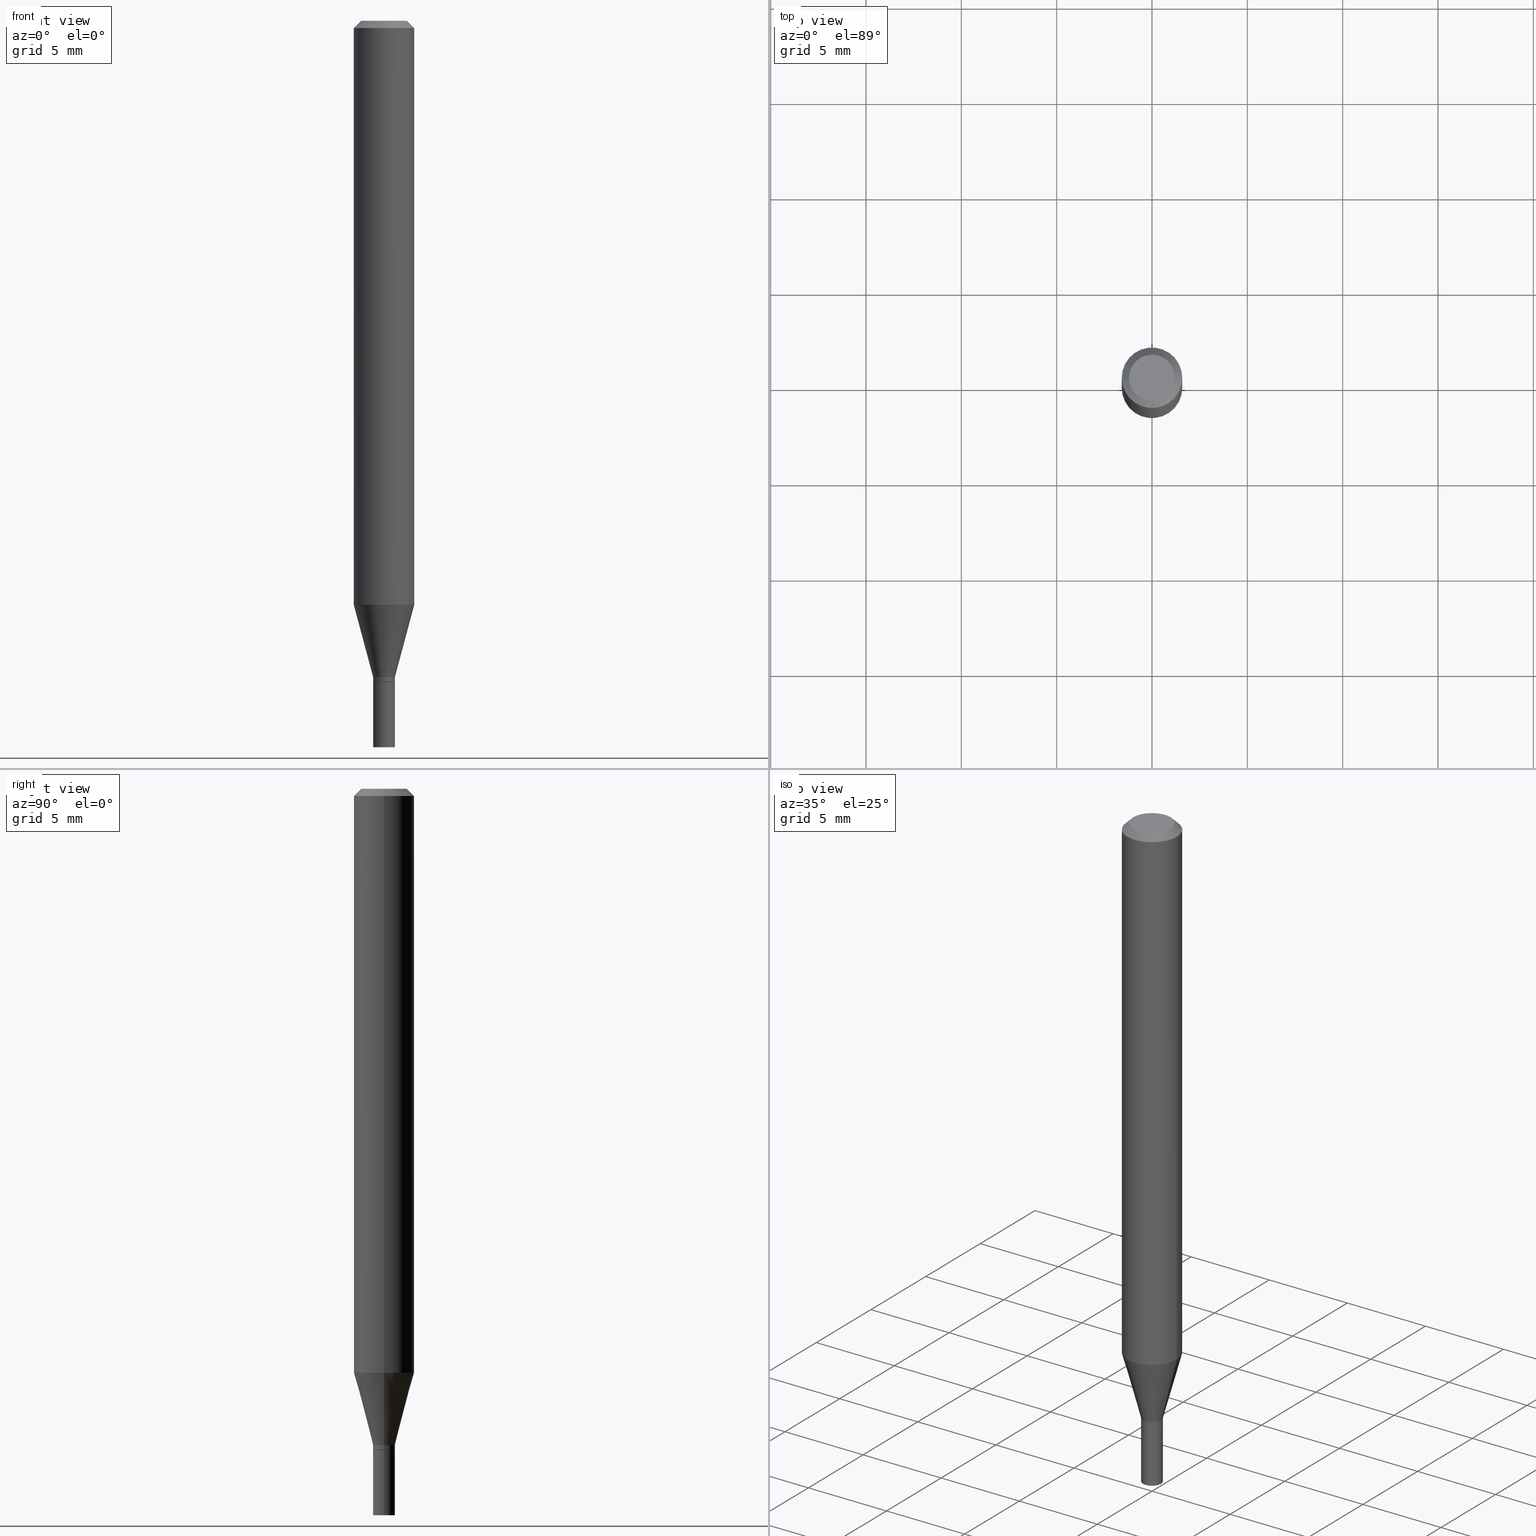
[diagram: canonical four-view strip — front | top / right | iso, engineering-drawing reading convention]
A machine part, canonical four-view strip (front | top / right | iso — engineering-drawing reading convention). The complete STEP part file that produces these views, byte-faithful:
ISO-10303-21;
HEADER;
FILE_DESCRIPTION (( 'STEP AP203' ),
    '1' );
FILE_NAME ('00483.STEP',
    '2024-03-19T21:20:29',
    ( '' ),
    ( '' ),
    'SwSTEP 2.0',
    'SolidWorks 2023',
    '' );
FILE_SCHEMA (( 'CONFIG_CONTROL_DESIGN' ));
ENDSEC;

DATA;
#1 = ORIENTED_EDGE ( 'NONE', *, *, #43, .T. ) ;
#2 = LINE ( 'NONE', #140, #127 ) ;
#3 = AXIS2_PLACEMENT_3D ( 'NONE', #68, #273, #282 ) ;
#4 = VECTOR ( 'NONE', #171, 39.37007874015748143 ) ;
#5 = DIRECTION ( 'NONE',  ( 1.000000000000000000, -6.982962677686269077E-15, 0.000000000000000000 ) ) ;
#6 = DIRECTION ( 'NONE',  ( -2.445468806185136597E-29, 3.491481338843145583E-15, 1.000000000000000000 ) ) ;
#7 = APPROVAL_STATUS ( 'not_yet_approved' ) ;
#8 = CARTESIAN_POINT ( 'NONE',  ( 3.338064920442711836E-29, -4.765872027520893280E-15, -1.364999999999999991 ) ) ;
#9 = APPROVAL ( #20, 'UNSPECIFIED' ) ;
#10 = DIRECTION ( 'NONE',  ( 1.000000000000000000, -6.982962677686267499E-15, 4.852736867747366768E-29 ) ) ;
#11 = ORIENTED_EDGE ( 'NONE', *, *, #128, .T. ) ;
#12 = PERSON_AND_ORGANIZATION ( #106, #370 ) ;
#13 = VERTEX_POINT ( 'NONE', #313 ) ;
#14 = DIRECTION ( 'NONE',  ( 0.7071067811865656694, -2.468850131082446387E-15, 0.7071067811865294761 ) ) ;
#15 = ADVANCED_FACE ( 'NONE', ( #456 ), #418, .T. ) ;
#16 = DIRECTION ( 'NONE',  ( 1.000000000000000000, -6.982962677686267499E-15, 4.852736867747366768E-29 ) ) ;
#17 = EDGE_LOOP ( 'NONE', ( #194, #21 ) ) ;
#18 = CONICAL_SURFACE ( 'NONE', #256, 0.02199999999999999872, 0.7853981633974739252 ) ;
#19 = CIRCLE ( 'NONE', #132, 0.06250000000000000000 ) ;
#20 = APPROVAL_STATUS ( 'not_yet_approved' ) ;
#21 = ORIENTED_EDGE ( 'NONE', *, *, #202, .F. ) ;
#22 = DIRECTION ( 'NONE',  ( 1.000000000000000000, -6.982962677686265922E-15, 4.876176775795935793E-29 ) ) ;
#23 = APPLICATION_PROTOCOL_DEFINITION ( 'international standard', 'config_control_design', 1994, #311 ) ;
#24 = EDGE_CURVE ( 'NONE', #101, #58, #335, .T. ) ;
#25 = APPROVAL ( #38, 'UNSPECIFIED' ) ;
#26 = CARTESIAN_POINT ( 'NONE',  ( -0.02249999999999999917, 1.598721155460225359E-16, -1.106760395307353780E-30 ) ) ;
#27 = LINE ( 'NONE', #26, #188 ) ;
#28 = AXIS2_PLACEMENT_3D ( 'NONE', #117, #298, #155 ) ;
#29 = FACE_OUTER_BOUND ( 'NONE', #17, .T. ) ;
#30 = SECURITY_CLASSIFICATION ( '', '', #455 ) ;
#31 = EDGE_CURVE ( 'NONE', #187, #58, #27, .T. ) ;
#32 = DIRECTION ( 'NONE',  ( -2.445468806185136597E-29, 3.491481338843145583E-15, 1.000000000000000000 ) ) ;
#33 = PERSON_AND_ORGANIZATION_ROLE ( 'design_supplier' ) ;
#34 = DIRECTION ( 'NONE',  ( 1.000000000000000000, -6.982962677686266711E-15, 0.000000000000000000 ) ) ;
#35 = CARTESIAN_POINT ( 'NONE',  ( 3.668203209277705088E-31, -5.237222008264718399E-17, -0.01499999999999999944 ) ) ;
#36 = VECTOR ( 'NONE', #366, 39.37007874015748143 ) ;
#37 = DIRECTION ( 'NONE',  ( 1.000000000000000000, -6.982962677686266711E-15, 0.000000000000000000 ) ) ;
#38 = APPROVAL_STATUS ( 'not_yet_approved' ) ;
#39 = PLANE ( 'NONE',  #382 ) ;
#40 = DIRECTION ( 'NONE',  ( -1.000000000000000000, 6.982962677686265922E-15, -4.876176775795935793E-29 ) ) ;
#41 = CIRCLE ( 'NONE', #57, 0.06250000000000000000 ) ;
#42 = CIRCLE ( 'NONE', #67, 0.02249999999999999917 ) ;
#43 = EDGE_CURVE ( 'NONE', #193, #271, #360, .T. ) ;
#44 = CARTESIAN_POINT ( 'NONE',  ( -5.723698685194923234E-45, 8.171924785126947293E-31, 2.340532281875119882E-16 ) ) ;
#45 = DIMENSIONAL_EXPONENTS ( 1.000000000000000000, 0.000000000000000000, 0.000000000000000000, 0.000000000000000000, 0.000000000000000000, 0.000000000000000000, 0.000000000000000000 ) ;
#46 = DIRECTION ( 'NONE',  ( 1.000000000000000000, -6.982962677686249356E-15, 0.000000000000000000 ) ) ;
#47 = PERSON_AND_ORGANIZATION ( #106, #370 ) ;
#48 = FACE_OUTER_BOUND ( 'NONE', #223, .T. ) ;
#49 = EDGE_CURVE ( 'NONE', #62, #54, #41, .T. ) ;
#50 = AXIS2_PLACEMENT_3D ( 'NONE', #44, #111, #10 ) ;
#51 = AXIS2_PLACEMENT_3D ( 'NONE', #178, #358, #464 ) ;
#52 = EDGE_LOOP ( 'NONE', ( #425, #447, #154, #122 ) ) ;
#53 = CARTESIAN_POINT ( 'NONE',  ( 3.338064920442711836E-29, -4.765872027520893280E-15, -1.364999999999999991 ) ) ;
#54 = VERTEX_POINT ( 'NONE', #363 ) ;
#55 = DIRECTION ( 'NONE',  ( -2.445468806185136597E-29, 3.491481338843145583E-15, 1.000000000000000000 ) ) ;
#56 = ORIENTED_EDGE ( 'NONE', *, *, #458, .F. ) ;
#57 = AXIS2_PLACEMENT_3D ( 'NONE', #371, #403, #431 ) ;
#58 = VERTEX_POINT ( 'NONE', #263 ) ;
#59 = CIRCLE ( 'NONE', #390, 0.06250000000000000000 ) ;
#60 = PRODUCT_DEFINITION_SHAPE ( 'NONE', 'NONE',  #168 ) ;
#61 = ADVANCED_FACE ( 'NONE', ( #331 ), #290, .T. ) ;
#62 = VERTEX_POINT ( 'NONE', #394 ) ;
#63 = LINE ( 'NONE', #457, #280 ) ;
#64 = COORDINATED_UNIVERSAL_TIME_OFFSET ( 5, 0, .BEHIND. ) ;
#65 = DIRECTION ( 'NONE',  ( -2.445468806185136597E-29, 3.491481338843145583E-15, 1.000000000000000000 ) ) ;
#66 = CIRCLE ( 'NONE', #28, 0.02249999999999992284 ) ;
#67 = AXIS2_PLACEMENT_3D ( 'NONE', #429, #359, #136 ) ;
#68 = CARTESIAN_POINT ( 'NONE',  ( 0.000000000000000000, 0.000000000000000000, 0.000000000000000000 ) ) ;
#69 = APPROVAL_DATE_TIME ( #281, #25 ) ;
#70 = DIRECTION ( 'NONE',  ( 1.000000000000000000, -6.982962677686265922E-15, 4.876176775795935793E-29 ) ) ;
#71 = CYLINDRICAL_SURFACE ( 'NONE', #437, 0.02249999999999999917 ) ;
#72 = APPROVAL_ROLE ( '' ) ;
#73 = EDGE_CURVE ( 'NONE', #193, #13, #85, .T. ) ;
#74 = ORIENTED_EDGE ( 'NONE', *, *, #49, .T. ) ;
#75 = CARTESIAN_POINT ( 'NONE',  ( 3.338064920442711836E-29, -4.765872027520893280E-15, -1.364999999999999991 ) ) ;
#76 = DIRECTION ( 'NONE',  ( -2.438088387897960049E-29, 3.491481338843145188E-15, 1.000000000000000000 ) ) ;
#77 = ADVANCED_FACE ( 'NONE', ( #152 ), #339, .T. ) ;
#78 = CARTESIAN_POINT ( 'NONE',  ( 0.02249999999999991937, -4.888073874380403263E-15, -1.355000000000000204 ) ) ;
#79 = AXIS2_PLACEMENT_3D ( 'NONE', #408, #294, #373 ) ;
#80 = AXIS2_PLACEMENT_3D ( 'NONE', #283, #138, #40 ) ;
#81 = CARTESIAN_POINT ( 'NONE',  ( 0.02249999999999999917, -4.922988687768834913E-15, -1.364999999999999991 ) ) ;
#82 = LINE ( 'NONE', #181, #36 ) ;
#83 = CARTESIAN_POINT ( 'NONE',  ( 3.313610232380860851E-29, -4.730957214132463209E-15, -1.355000000000000204 ) ) ;
#84 =( NAMED_UNIT ( * ) PLANE_ANGLE_UNIT ( ) SI_UNIT ( $, .RADIAN. ) );
#85 = LINE ( 'NONE', #333, #305 ) ;
#86 = ORIENTED_EDGE ( 'NONE', *, *, #105, .F. ) ;
#87 = ORIENTED_EDGE ( 'NONE', *, *, #409, .F. ) ;
#88 = MANIFOLD_SOLID_BREP ( 'Body-Move/Copy2[1]', #405 ) ;
#89 = CARTESIAN_POINT ( 'NONE',  ( 0.000000000000000000, 0.000000000000000000, 0.000000000000000000 ) ) ;
#90 = EDGE_LOOP ( 'NONE', ( #74, #343, #234, #126 ) ) ;
#91 = CC_DESIGN_APPROVAL ( #25, ( #30 ) ) ;
#92 = ORIENTED_EDGE ( 'NONE', *, *, #31, .F. ) ;
#93 = CARTESIAN_POINT ( 'NONE',  ( 0.000000000000000000, 0.000000000000000000, 0.000000000000000000 ) ) ;
#94 = DIRECTION ( 'NONE',  ( 1.000000000000000000, 0.000000000000000000, 0.000000000000000000 ) ) ;
#95 = ORIENTED_EDGE ( 'NONE', *, *, #134, .F. ) ;
#96 = CC_DESIGN_SECURITY_CLASSIFICATION ( #30, ( #376 ) ) ;
#97 = DATE_TIME_ROLE ( 'creation_date' ) ;
#98 = CARTESIAN_POINT ( 'NONE',  ( 3.338064920442711836E-29, -4.765872027520893280E-15, -1.364999999999999991 ) ) ;
#99 = EDGE_CURVE ( 'NONE', #225, #375, #246, .T. ) ;
#100 = DATE_AND_TIME ( #170, #287 ) ;
#101 = VERTEX_POINT ( 'NONE', #81 ) ;
#102 = AXIS2_PLACEMENT_3D ( 'NONE', #53, #252, #268 ) ;
#103 = FACE_OUTER_BOUND ( 'NONE', #52, .T. ) ;
#104 = CALENDAR_DATE ( 2024, 19, 3 ) ;
#105 = EDGE_CURVE ( 'NONE', #375, #225, #266, .T. ) ;
#106 = PERSON ( 'UNSPECIFIED', 'UNSPECIFIED', 'UNSPECIFIED', ('UNSPECIFIED'), ('UNSPECIFIED'), ('UNSPECIFIED') ) ;
#107 = ADVANCED_FACE ( 'NONE', ( #222 ), #119, .T. ) ;
#108 = DATE_AND_TIME ( #172, #427 ) ;
#109 = PLANE ( 'NONE',  #80 ) ;
#110 = VECTOR ( 'NONE', #299, 39.37007874015747433 ) ;
#111 = DIRECTION ( 'NONE',  ( -2.445468806185136597E-29, 3.491481338843145583E-15, 1.000000000000000000 ) ) ;
#112 = LOCAL_TIME ( 17, 20, 29.00000000000000000, #124 ) ;
#113 = CARTESIAN_POINT ( 'NONE',  ( 3.338064920442711836E-29, -4.765872027520893280E-15, -1.364999999999999991 ) ) ;
#114 = DATE_AND_TIME ( #149, #218 ) ;
#115 = DIRECTION ( 'NONE',  ( 1.000000000000000000, -6.982962677686249356E-15, 0.000000000000000000 ) ) ;
#116 = CC_DESIGN_DATE_AND_TIME_ASSIGNMENT ( #312, #97, ( #168 ) ) ;
#117 = CARTESIAN_POINT ( 'NONE',  ( 3.336842186039619034E-29, -4.764126286851473355E-15, -1.364500000000000046 ) ) ;
#118 = VERTEX_POINT ( 'NONE', #148 ) ;
#119 = CONICAL_SURFACE ( 'NONE', #217, 0.06250000000000000000, 0.7853981633974405074 ) ;
#120 = FACE_OUTER_BOUND ( 'NONE', #238, .T. ) ;
#121 = CIRCLE ( 'NONE', #206, 0.02249999999999999917 ) ;
#122 = ORIENTED_EDGE ( 'NONE', *, *, #254, .F. ) ;
#123 = ORIENTED_EDGE ( 'NONE', *, *, #24, .T. ) ;
#124 = COORDINATED_UNIVERSAL_TIME_OFFSET ( 5, 0, .BEHIND. ) ;
#125 = VERTEX_POINT ( 'NONE', #219 ) ;
#126 = ORIENTED_EDGE ( 'NONE', *, *, #328, .F. ) ;
#127 = VECTOR ( 'NONE', #353, 39.37007874015748143 ) ;
#128 = EDGE_CURVE ( 'NONE', #13, #118, #66, .T. ) ;
#129 = PLANE ( 'NONE',  #247 ) ;
#130 = PERSON_AND_ORGANIZATION ( #106, #370 ) ;
#131 = DIRECTION ( 'NONE',  ( -2.445468806185136877E-29, 3.491481338843145188E-15, 1.000000000000000000 ) ) ;
#132 = AXIS2_PLACEMENT_3D ( 'NONE', #235, #32, #34 ) ;
#133 = DIRECTION ( 'NONE',  ( -2.438088387897960049E-29, 3.491481338843145188E-15, 1.000000000000000000 ) ) ;
#134 = EDGE_CURVE ( 'NONE', #225, #406, #300, .T. ) ;
#135 = PRODUCT_RELATED_PRODUCT_CATEGORY ( 'detail', '', ( #341 ) ) ;
#136 = DIRECTION ( 'NONE',  ( 1.000000000000000000, -6.982962677686269077E-15, 0.000000000000000000 ) ) ;
#137 = EDGE_LOOP ( 'NONE', ( #340, #156, #372, #56 ) ) ;
#138 = DIRECTION ( 'NONE',  ( 2.438088387897960049E-29, -3.491481338843145188E-15, -1.000000000000000000 ) ) ;
#139 = ORIENTED_EDGE ( 'NONE', *, *, #338, .T. ) ;
#140 = CARTESIAN_POINT ( 'NONE',  ( 0.06250000000000000000, -4.364351673553916694E-16, 3.047610484872459871E-30 ) ) ;
#141 = AXIS2_PLACEMENT_3D ( 'NONE', #75, #289, #5 ) ;
#142 = CARTESIAN_POINT ( 'NONE',  ( 0.000000000000000000, 0.000000000000000000, 0.000000000000000000 ) ) ;
#143 = CARTESIAN_POINT ( 'NONE',  ( -0.02249999999999999917, -4.841674902346784228E-15, -1.500000000000000222 ) ) ;
#144 = DIRECTION ( 'NONE',  ( -2.445468806185136597E-29, 3.491481338843145583E-15, 1.000000000000000000 ) ) ;
#145 = DIRECTION ( 'NONE',  ( -1.000000000000000000, 6.982962677686266711E-15, 0.000000000000000000 ) ) ;
#146 = CARTESIAN_POINT ( 'NONE',  ( 0.000000000000000000, 0.000000000000000000, 0.000000000000000000 ) ) ;
#147 = ORIENTED_EDGE ( 'NONE', *, *, #327, .F. ) ;
#148 = CARTESIAN_POINT ( 'NONE',  ( -0.02249999999999992284, -4.604254171305449488E-15, -1.364500000000000046 ) ) ;
#149 = CALENDAR_DATE ( 2024, 19, 3 ) ;
#150 = ORIENTED_EDGE ( 'NONE', *, *, #243, .F. ) ;
#151 = CC_DESIGN_DATE_AND_TIME_ASSIGNMENT ( #100, #240, ( #30 ) ) ;
#152 = FACE_OUTER_BOUND ( 'NONE', #90, .T. ) ;
#153 = ORIENTED_EDGE ( 'NONE', *, *, #459, .F. ) ;
#154 = ORIENTED_EDGE ( 'NONE', *, *, #24, .F. ) ;
#155 = DIRECTION ( 'NONE',  ( 1.000000000000000000, -6.982962677686248567E-15, 0.000000000000000000 ) ) ;
#156 = ORIENTED_EDGE ( 'NONE', *, *, #202, .T. ) ;
#157 = ADVANCED_FACE ( 'NONE', ( #120 ), #18, .T. ) ;
#158 = AXIS2_PLACEMENT_3D ( 'NONE', #93, #400, #192 ) ;
#159 = AXIS2_PLACEMENT_3D ( 'NONE', #142, #213, #70 ) ;
#160 = ORIENTED_EDGE ( 'NONE', *, *, #436, .T. ) ;
#161 = DIRECTION ( 'NONE',  ( 1.000000000000000000, -6.982962677686269077E-15, 0.000000000000000000 ) ) ;
#162 = CYLINDRICAL_SURFACE ( 'NONE', #3, 0.02249999999999992284 ) ;
#163 = CALENDAR_DATE ( 2024, 19, 3 ) ;
#164 = ORIENTED_EDGE ( 'NONE', *, *, #49, .F. ) ;
#165 = LINE ( 'NONE', #314, #267 ) ;
#166 = VERTEX_POINT ( 'NONE', #227 ) ;
#167 = APPROVAL_PERSON_ORGANIZATION ( #402, #386, #463 ) ;
#168 = PRODUCT_DEFINITION ( 'UNKNOWN', '', #376, #374 ) ;
#169 = CARTESIAN_POINT ( 'NONE',  ( 3.338064920442711836E-29, -4.765872027520893280E-15, -1.364999999999999991 ) ) ;
#170 = CALENDAR_DATE ( 2024, 19, 3 ) ;
#171 = DIRECTION ( 'NONE',  ( -2.445468806185136877E-29, 3.491481338843145188E-15, 1.000000000000000000 ) ) ;
#172 = CALENDAR_DATE ( 2024, 19, 3 ) ;
#173 = ADVANCED_FACE ( 'NONE', ( #48 ), #279, .T. ) ;
#174 = CIRCLE ( 'NONE', #326, 0.02249999999999991937 ) ;
#175 = FACE_OUTER_BOUND ( 'NONE', #412, .T. ) ;
#176 = CARTESIAN_POINT ( 'NONE',  ( 3.576687321579069994E-29, -5.368277968210015545E-15, -1.500000000000000222 ) ) ;
#177 = EDGE_LOOP ( 'NONE', ( #397, #230, #164, #153 ) ) ;
#178 = CARTESIAN_POINT ( 'NONE',  ( 3.668203209277705088E-31, -5.237222008264718399E-17, -0.01499999999999999944 ) ) ;
#179 = ORIENTED_EDGE ( 'NONE', *, *, #327, .T. ) ;
#180 = CIRCLE ( 'NONE', #198, 0.02249999999999992284 ) ;
#181 = CARTESIAN_POINT ( 'NONE',  ( 0.02249999999999992284, -1.571166602479404488E-16, 1.097139774554081805E-30 ) ) ;
#182 = CARTESIAN_POINT ( 'NONE',  ( 3.668203209277704895E-29, -5.237222008264718177E-15, -1.500000000000000222 ) ) ;
#183 = DIRECTION ( 'NONE',  ( 1.000000000000000000, -6.982962677686266711E-15, 4.876176775795935793E-29 ) ) ;
#184 = COORDINATED_UNIVERSAL_TIME_OFFSET ( 5, 0, .BEHIND. ) ;
#185 = CARTESIAN_POINT ( 'NONE',  ( 3.313610232380860851E-29, -4.730957214132463209E-15, -1.355000000000000204 ) ) ;
#186 = CC_DESIGN_PERSON_AND_ORGANIZATION_ASSIGNMENT ( #398, #441, ( #168 ) ) ;
#187 = VERTEX_POINT ( 'NONE', #143 ) ;
#188 = VECTOR ( 'NONE', #131, 39.37007874015748143 ) ;
#189 = CONICAL_SURFACE ( 'NONE', #51, 0.06250000000000000000, 0.7853981633974405074 ) ;
#190 = FACE_OUTER_BOUND ( 'NONE', #177, .T. ) ;
#191 = CARTESIAN_POINT ( 'NONE',  ( 0.06250000000000000000, -4.811533449433679005E-16, -0.01499999999999999944 ) ) ;
#192 = DIRECTION ( 'NONE',  ( 1.000000000000000000, -6.982962677686266711E-15, 4.876176775795935793E-29 ) ) ;
#193 = VERTEX_POINT ( 'NONE', #434 ) ;
#194 = ORIENTED_EDGE ( 'NONE', *, *, #43, .F. ) ;
#195 = DIRECTION ( 'NONE',  ( 2.445468806185136597E-29, -3.491481338843145583E-15, -1.000000000000000000 ) ) ;
#196 = LINE ( 'NONE', #191, #322 ) ;
#197 = DIRECTION ( 'NONE',  ( 1.000000000000000000, -6.982962677686248567E-15, 0.000000000000000000 ) ) ;
#198 = AXIS2_PLACEMENT_3D ( 'NONE', #307, #411, #197 ) ;
#199 = ORIENTED_EDGE ( 'NONE', *, *, #262, .F. ) ;
#200 = DIRECTION ( 'NONE',  ( -0.2588190451025213501, 5.211531920934551042E-15, 0.9659258262890682012 ) ) ;
#201 = PERSON_AND_ORGANIZATION ( #106, #370 ) ;
#202 = EDGE_CURVE ( 'NONE', #271, #193, #321, .T. ) ;
#203 = EDGE_LOOP ( 'NONE', ( #444, #87 ) ) ;
#204 = CARTESIAN_POINT ( 'NONE',  ( -0.04749999999999999362, 3.578768372314215436E-16, 2.340532281875096216E-16 ) ) ;
#205 = AXIS2_PLACEMENT_3D ( 'NONE', #98, #65, #161 ) ;
#206 = AXIS2_PLACEMENT_3D ( 'NONE', #182, #251, #211 ) ;
#207 =( GEOMETRIC_REPRESENTATION_CONTEXT ( 3 ) GLOBAL_UNCERTAINTY_ASSIGNED_CONTEXT ( ( #419 ) ) GLOBAL_UNIT_ASSIGNED_CONTEXT ( ( #334, #84, #332 ) ) REPRESENTATION_CONTEXT ( 'NONE', 'WORKASPACE' ) );
#208 = DIRECTION ( 'NONE',  ( -2.445468806185136877E-29, 3.491481338843145188E-15, 1.000000000000000000 ) ) ;
#209 = ADVANCED_FACE ( 'NONE', ( #190 ), #435, .T. ) ;
#210 = EDGE_CURVE ( 'NONE', #369, #296, #174, .T. ) ;
#211 = DIRECTION ( 'NONE',  ( 1.000000000000000000, -6.982962677686269077E-15, 0.000000000000000000 ) ) ;
#212 = CIRCLE ( 'NONE', #356, 0.02249999999999991937 ) ;
#213 = DIRECTION ( 'NONE',  ( -2.445468806185136597E-29, 3.491481338843145583E-15, 1.000000000000000000 ) ) ;
#214 = APPLICATION_CONTEXT ( 'configuration controlled 3d designs of mechanical parts and assemblies' ) ;
#215 = ADVANCED_FACE ( 'NONE', ( #260 ), #224, .F. ) ;
#216 = LINE ( 'NONE', #245, #414 ) ;
#217 = AXIS2_PLACEMENT_3D ( 'NONE', #303, #195, #145 ) ;
#218 = LOCAL_TIME ( 17, 20, 29.00000000000000000, #184 ) ;
#219 = CARTESIAN_POINT ( 'NONE',  ( 0.06250000000000000000, -4.888073874380388472E-16, -0.01499999999999999944 ) ) ;
#220 = ADVANCED_FACE ( 'NONE', ( #29 ), #129, .F. ) ;
#221 = ADVANCED_FACE ( 'NONE', ( #380 ), #162, .T. ) ;
#222 = FACE_OUTER_BOUND ( 'NONE', #269, .T. ) ;
#223 = EDGE_LOOP ( 'NONE', ( #199, #336, #264, #465 ) ) ;
#224 = PLANE ( 'NONE',  #361 ) ;
#225 = VERTEX_POINT ( 'NONE', #204 ) ;
#226 = CC_DESIGN_APPROVAL ( #386, ( #376 ) ) ;
#227 = CARTESIAN_POINT ( 'NONE',  ( 0.02249999999999999917, -5.394338668512659809E-15, -1.500000000000000222 ) ) ;
#228 = ORIENTED_EDGE ( 'NONE', *, *, #453, .T. ) ;
#229 = CARTESIAN_POINT ( 'NONE',  ( -0.06250000000000000000, 3.840629472727444916E-16, -0.01499999999999999944 ) ) ;
#230 = ORIENTED_EDGE ( 'NONE', *, *, #262, .T. ) ;
#231 = AXIS2_PLACEMENT_3D ( 'NONE', #83, #365, #46 ) ;
#232 = LENGTH_MEASURE_WITH_UNIT ( LENGTH_MEASURE( 0.02539999999999999897 ), #364 );
#233 = APPROVAL_PERSON_ORGANIZATION ( #388, #25, #72 ) ;
#234 = ORIENTED_EDGE ( 'NONE', *, *, #244, .F. ) ;
#235 = CARTESIAN_POINT ( 'NONE',  ( 3.668203209277705088E-31, -5.237222008264718399E-17, -0.01499999999999999944 ) ) ;
#236 = DIRECTION ( 'NONE',  ( 1.000000000000000000, -6.982962677686265922E-15, 4.876176775795935793E-29 ) ) ;
#237 = ORIENTED_EDGE ( 'NONE', *, *, #436, .F. ) ;
#238 = EDGE_LOOP ( 'NONE', ( #1, #139, #416, #379 ) ) ;
#239 = CARTESIAN_POINT ( 'NONE',  ( -0.06250000000000000000, 4.440892098500626162E-16, -3.074334431409316114E-30 ) ) ;
#240 = DATE_TIME_ROLE ( 'classification_date' ) ;
#241 = SHAPE_DEFINITION_REPRESENTATION ( #60, #253 ) ;
#242 = PERSON_AND_ORGANIZATION_ROLE ( 'creator' ) ;
#243 = EDGE_CURVE ( 'NONE', #54, #406, #420, .T. ) ;
#244 = EDGE_CURVE ( 'NONE', #125, #406, #19, .T. ) ;
#245 = CARTESIAN_POINT ( 'NONE',  ( -0.02199999999999999872, -4.609552625653671101E-15, -1.364999999999999991 ) ) ;
#246 = CIRCLE ( 'NONE', #50, 0.04749999999999999362 ) ;
#247 = AXIS2_PLACEMENT_3D ( 'NONE', #351, #133, #22 ) ;
#248 = DIRECTION ( 'NONE',  ( -2.445468806185136597E-29, 3.491481338843145583E-15, 1.000000000000000000 ) ) ;
#249 = CC_DESIGN_PERSON_AND_ORGANIZATION_ASSIGNMENT ( #47, #450, ( #341 ) ) ;
#250 = FACE_OUTER_BOUND ( 'NONE', #203, .T. ) ;
#251 = DIRECTION ( 'NONE',  ( -2.445468806185136597E-29, 3.491481338843145583E-15, 1.000000000000000000 ) ) ;
#252 = DIRECTION ( 'NONE',  ( -2.445468806185136597E-29, 3.491481338843145583E-15, 1.000000000000000000 ) ) ;
#253 = ADVANCED_BREP_SHAPE_REPRESENTATION ( '00483', ( #88, #393, #462 ), #207 ) ;
#254 = EDGE_CURVE ( 'NONE', #166, #101, #384, .T. ) ;
#255 = ADVANCED_FACE ( 'NONE', ( #350 ), #315, .T. ) ;
#256 = AXIS2_PLACEMENT_3D ( 'NONE', #8, #6, #443 ) ;
#257 = CC_DESIGN_APPROVAL ( #9, ( #168 ) ) ;
#258 = DIRECTION ( 'NONE',  ( -2.445468806185136597E-29, 3.491481338843145583E-15, 1.000000000000000000 ) ) ;
#259 = CARTESIAN_POINT ( 'NONE',  ( 0.02249999999999991937, -4.888073874380403263E-15, -1.355000000000000204 ) ) ;
#260 = FACE_OUTER_BOUND ( 'NONE', #325, .T. ) ;
#261 = EDGE_LOOP ( 'NONE', ( #123, #179 ) ) ;
#262 = EDGE_CURVE ( 'NONE', #369, #54, #63, .T. ) ;
#263 = CARTESIAN_POINT ( 'NONE',  ( -0.02249999999999999917, -4.841674902346784228E-15, -1.364999999999999991 ) ) ;
#264 = ORIENTED_EDGE ( 'NONE', *, *, #459, .T. ) ;
#265 = EDGE_LOOP ( 'NONE', ( #92, #302, #410, #147 ) ) ;
#266 = CIRCLE ( 'NONE', #461, 0.04749999999999999362 ) ;
#267 = VECTOR ( 'NONE', #460, 39.37007874015748143 ) ;
#268 = DIRECTION ( 'NONE',  ( 1.000000000000000000, -6.982962677686245411E-15, 0.000000000000000000 ) ) ;
#269 = EDGE_LOOP ( 'NONE', ( #86, #160, #277, #95 ) ) ;
#270 = APPROVAL_DATE_TIME ( #114, #9 ) ;
#271 = VERTEX_POINT ( 'NONE', #320 ) ;
#272 = EDGE_CURVE ( 'NONE', #118, #369, #165, .T. ) ;
#273 = DIRECTION ( 'NONE',  ( -2.445468806185136597E-29, 3.491481338843145583E-15, 1.000000000000000000 ) ) ;
#274 = CLOSED_SHELL ( 'NONE', ( #221, #157, #107, #77, #209, #173, #61, #399, #215, #220, #255, #317 ) ) ;
#275 = CIRCLE ( 'NONE', #141, 0.02249999999999999917 ) ;
#276 = ORIENTED_EDGE ( 'NONE', *, *, #453, .F. ) ;
#277 = ORIENTED_EDGE ( 'NONE', *, *, #244, .T. ) ;
#278 = CARTESIAN_POINT ( 'NONE',  ( 3.316907271900976096E-16, 0.04749999999999999362, -4.881874950129340235E-17 ) ) ;
#279 = CONICAL_SURFACE ( 'NONE', #79, 0.02249999999999991937, 0.2617993877991500740 ) ;
#280 = VECTOR ( 'NONE', #200, 39.37007874015747433 ) ;
#281 = DATE_AND_TIME ( #104, #297 ) ;
#282 = DIRECTION ( 'NONE',  ( 1.000000000000000000, -6.982962677686265922E-15, 4.876176775795935793E-29 ) ) ;
#283 = CARTESIAN_POINT ( 'NONE',  ( 1.571166602479743698E-16, 0.02249999999999523215, -1.364999999999999991 ) ) ;
#284 = ORIENTED_EDGE ( 'NONE', *, *, #458, .T. ) ;
#285 = DIRECTION ( 'NONE',  ( -2.445468806185136597E-29, 3.491481338843145583E-15, 1.000000000000000000 ) ) ;
#286 = VECTOR ( 'NONE', #445, 39.37007874015748143 ) ;
#287 = LOCAL_TIME ( 17, 20, 29.00000000000000000, #383 ) ;
#288 = CARTESIAN_POINT ( 'NONE',  ( -0.02249999999999991937, -4.168368836429595565E-15, -1.355000000000000204 ) ) ;
#289 = DIRECTION ( 'NONE',  ( -2.445468806185136597E-29, 3.491481338843145583E-15, 1.000000000000000000 ) ) ;
#290 = CYLINDRICAL_SURFACE ( 'NONE', #158, 0.06250000000000000000 ) ;
#291 = ADVANCED_FACE ( 'NONE', ( #103 ), #71, .T. ) ;
#292 = APPROVAL_ROLE ( '' ) ;
#293 = CARTESIAN_POINT ( 'NONE',  ( 0.04749999999999999362, -4.035134999187574186E-16, 2.340532281875146013E-16 ) ) ;
#294 = DIRECTION ( 'NONE',  ( -2.445468806185136597E-29, 3.491481338843145583E-15, 1.000000000000000000 ) ) ;
#295 = DIRECTION ( 'NONE',  ( 0.000000000000000000, 0.000000000000000000, 1.000000000000000000 ) ) ;
#296 = VERTEX_POINT ( 'NONE', #78 ) ;
#297 = LOCAL_TIME ( 17, 20, 29.00000000000000000, #318 ) ;
#298 = DIRECTION ( 'NONE',  ( -2.445468806185136597E-29, 3.491481338843145583E-15, 1.000000000000000000 ) ) ;
#299 = DIRECTION ( 'NONE',  ( 0.2588190451025213501, 1.565188264969621968E-15, 0.9659258262890682012 ) ) ;
#300 = LINE ( 'NONE', #229, #286 ) ;
#301 = EDGE_LOOP ( 'NONE', ( #11, #448, #449, #276 ) ) ;
#302 = ORIENTED_EDGE ( 'NONE', *, *, #409, .T. ) ;
#303 = CARTESIAN_POINT ( 'NONE',  ( 3.668203209277705088E-31, -5.237222008264718399E-17, -0.01499999999999999944 ) ) ;
#304 = ORIENTED_EDGE ( 'NONE', *, *, #328, .T. ) ;
#305 = VECTOR ( 'NONE', #14, 39.37007874015748143 ) ;
#306 = AXIS2_PLACEMENT_3D ( 'NONE', #169, #319, #378 ) ;
#307 = CARTESIAN_POINT ( 'NONE',  ( 3.336842186039619034E-29, -4.764126286851473355E-15, -1.364500000000000046 ) ) ;
#308 = EDGE_CURVE ( 'NONE', #166, #187, #121, .T. ) ;
#309 = CC_DESIGN_PERSON_AND_ORGANIZATION_ASSIGNMENT ( #130, #417, ( #30 ) ) ;
#310 = ORIENTED_EDGE ( 'NONE', *, *, #354, .T. ) ;
#311 = APPLICATION_CONTEXT ( 'configuration controlled 3d designs of mechanical parts and assemblies' ) ;
#312 = DATE_AND_TIME ( #163, #112 ) ;
#313 = CARTESIAN_POINT ( 'NONE',  ( 0.02249999999999992284, -4.921242947099412620E-15, -1.364500000000000046 ) ) ;
#314 = CARTESIAN_POINT ( 'NONE',  ( -0.02249999999999992284, 1.598721155460219936E-16, -1.106760395307350101E-30 ) ) ;
#315 = CONICAL_SURFACE ( 'NONE', #306, 0.02199999999999999872, 0.7853981633974739252 ) ;
#316 = ORIENTED_EDGE ( 'NONE', *, *, #210, .F. ) ;
#317 = ADVANCED_FACE ( 'NONE', ( #385 ), #392, .T. ) ;
#318 = COORDINATED_UNIVERSAL_TIME_OFFSET ( 5, 0, .BEHIND. ) ;
#319 = DIRECTION ( 'NONE',  ( -2.445468806185136597E-29, 3.491481338843145583E-15, 1.000000000000000000 ) ) ;
#320 = CARTESIAN_POINT ( 'NONE',  ( -0.02199999999999999872, -4.606903398479560689E-15, -1.364999999999999991 ) ) ;
#321 = CIRCLE ( 'NONE', #381, 0.02199999999999999872 ) ;
#322 = VECTOR ( 'NONE', #439, 39.37007874015748143 ) ;
#323 = DIRECTION ( 'NONE',  ( -0.7071067811865656694, 7.493145998870420424E-15, 0.7071067811865294761 ) ) ;
#324 = CARTESIAN_POINT ( 'NONE',  ( -0.06250000000000000000, -1.686967792252667731E-15, -0.01499999999999999944 ) ) ;
#325 = EDGE_LOOP ( 'NONE', ( #387, #377 ) ) ;
#326 = AXIS2_PLACEMENT_3D ( 'NONE', #185, #440, #115 ) ;
#327 = EDGE_CURVE ( 'NONE', #58, #101, #275, .T. ) ;
#328 = EDGE_CURVE ( 'NONE', #62, #125, #2, .T. ) ;
#329 = MECHANICAL_CONTEXT ( 'NONE', #311, 'mechanical' ) ;
#330 = DIRECTION ( 'NONE',  ( 1.000000000000000000, -6.982962677686249356E-15, 0.000000000000000000 ) ) ;
#331 = FACE_OUTER_BOUND ( 'NONE', #446, .T. ) ;
#332 =( NAMED_UNIT ( * ) SI_UNIT ( $, .STERADIAN. ) SOLID_ANGLE_UNIT ( ) );
#333 = CARTESIAN_POINT ( 'NONE',  ( 0.02199999999999999872, -4.919497206429991117E-15, -1.364999999999999991 ) ) ;
#334 =( CONVERSION_BASED_UNIT ( 'INCH', #232 ) LENGTH_UNIT ( ) NAMED_UNIT ( #45 ) );
#335 = CIRCLE ( 'NONE', #205, 0.02249999999999999917 ) ;
#336 = ORIENTED_EDGE ( 'NONE', *, *, #210, .T. ) ;
#337 = DIRECTION ( 'NONE',  ( 1.000000000000000000, -6.982962677686245411E-15, 0.000000000000000000 ) ) ;
#338 = EDGE_CURVE ( 'NONE', #271, #118, #216, .T. ) ;
#339 = CYLINDRICAL_SURFACE ( 'NONE', #421, 0.06250000000000000000 ) ;
#340 = ORIENTED_EDGE ( 'NONE', *, *, #338, .F. ) ;
#341 = PRODUCT ( '00483', '00483', '', ( #329 ) ) ;
#342 = EDGE_CURVE ( 'NONE', #54, #62, #59, .T. ) ;
#343 = ORIENTED_EDGE ( 'NONE', *, *, #243, .T. ) ;
#344 = ORIENTED_EDGE ( 'NONE', *, *, #354, .F. ) ;
#345 = DIRECTION ( 'NONE',  ( -1.000000000000000000, 6.982962677686265922E-15, -4.876176775795935793E-29 ) ) ;
#346 = DIRECTION ( 'NONE',  ( -2.445468806185136597E-29, 3.491481338843145583E-15, 1.000000000000000000 ) ) ;
#347 = DIRECTION ( 'NONE',  ( 2.438088387897960049E-29, -3.491481338843145188E-15, -1.000000000000000000 ) ) ;
#348 = PERSON_AND_ORGANIZATION ( #106, #370 ) ;
#349 = CARTESIAN_POINT ( 'NONE',  ( 0.000000000000000000, 0.000000000000000000, 0.000000000000000000 ) ) ;
#350 = FACE_OUTER_BOUND ( 'NONE', #137, .T. ) ;
#351 = CARTESIAN_POINT ( 'NONE',  ( 3.338064920442711836E-29, -4.765872027520893280E-15, -1.364999999999999991 ) ) ;
#352 = APPROVAL_DATE_TIME ( #108, #386 ) ;
#353 = DIRECTION ( 'NONE',  ( -2.445468806185136877E-29, 3.491481338843145188E-15, 1.000000000000000000 ) ) ;
#354 = EDGE_CURVE ( 'NONE', #406, #125, #422, .T. ) ;
#355 = CC_DESIGN_PERSON_AND_ORGANIZATION_ASSIGNMENT ( #201, #242, ( #376 ) ) ;
#356 = AXIS2_PLACEMENT_3D ( 'NONE', #430, #285, #330 ) ;
#357 = DIRECTION ( 'NONE',  ( 1.000000000000000000, -6.982962677686270655E-15, 0.000000000000000000 ) ) ;
#358 = DIRECTION ( 'NONE',  ( 2.445468806185136597E-29, -3.491481338843145583E-15, -1.000000000000000000 ) ) ;
#359 = DIRECTION ( 'NONE',  ( -2.445468806185136597E-29, 3.491481338843145583E-15, 1.000000000000000000 ) ) ;
#360 = CIRCLE ( 'NONE', #102, 0.02199999999999999872 ) ;
#361 = AXIS2_PLACEMENT_3D ( 'NONE', #278, #347, #345 ) ;
#362 = CARTESIAN_POINT ( 'NONE',  ( 2.948545679060551070E-29, -4.209741784122813615E-15, -1.205717967697245152 ) ) ;
#363 = CARTESIAN_POINT ( 'NONE',  ( -0.06250000000000001388, -3.765652574272750998E-15, -1.205717967697245152 ) ) ;
#364 =( LENGTH_UNIT ( ) NAMED_UNIT ( * ) SI_UNIT ( $, .METRE. ) );
#365 = DIRECTION ( 'NONE',  ( -2.445468806185136597E-29, 3.491481338843145583E-15, 1.000000000000000000 ) ) ;
#366 = DIRECTION ( 'NONE',  ( -2.445468806185136877E-29, 3.491481338843145188E-15, 1.000000000000000000 ) ) ;
#367 = CARTESIAN_POINT ( 'NONE',  ( -5.723698685194923234E-45, 8.171924785126947293E-31, 2.340532281875119882E-16 ) ) ;
#368 = CC_DESIGN_PERSON_AND_ORGANIZATION_ASSIGNMENT ( #348, #33, ( #376 ) ) ;
#369 = VERTEX_POINT ( 'NONE', #288 ) ;
#370 = ORGANIZATION ( 'UNSPECIFIED', 'UNSPECIFIED', '' ) ;
#371 = CARTESIAN_POINT ( 'NONE',  ( 2.948545679060551070E-29, -4.209741784122813615E-15, -1.205717967697245152 ) ) ;
#372 = ORIENTED_EDGE ( 'NONE', *, *, #73, .T. ) ;
#373 = DIRECTION ( 'NONE',  ( 1.000000000000000000, -6.982962677686249356E-15, 0.000000000000000000 ) ) ;
#374 = DESIGN_CONTEXT ( 'detailed design', #214, 'design' ) ;
#375 = VERTEX_POINT ( 'NONE', #293 ) ;
#376 = PRODUCT_DEFINITION_FORMATION_WITH_SPECIFIED_SOURCE ( 'ANY', '', #341, .NOT_KNOWN. ) ;
#377 = ORIENTED_EDGE ( 'NONE', *, *, #105, .T. ) ;
#378 = DIRECTION ( 'NONE',  ( 1.000000000000000000, -6.982962677686245411E-15, 0.000000000000000000 ) ) ;
#379 = ORIENTED_EDGE ( 'NONE', *, *, #73, .F. ) ;
#380 = FACE_OUTER_BOUND ( 'NONE', #301, .T. ) ;
#381 = AXIS2_PLACEMENT_3D ( 'NONE', #113, #396, #337 ) ;
#382 = AXIS2_PLACEMENT_3D ( 'NONE', #176, #76, #236 ) ;
#383 = COORDINATED_UNIVERSAL_TIME_OFFSET ( 5, 0, .BEHIND. ) ;
#384 = LINE ( 'NONE', #413, #4 ) ;
#385 = FACE_OUTER_BOUND ( 'NONE', #404, .T. ) ;
#386 = APPROVAL ( #7, 'UNSPECIFIED' ) ;
#387 = ORIENTED_EDGE ( 'NONE', *, *, #99, .T. ) ;
#388 = PERSON_AND_ORGANIZATION ( #106, #370 ) ;
#389 = AXIS2_PLACEMENT_3D ( 'NONE', #349, #346, #452 ) ;
#390 = AXIS2_PLACEMENT_3D ( 'NONE', #362, #144, #357 ) ;
#391 = FACE_OUTER_BOUND ( 'NONE', #261, .T. ) ;
#392 = CYLINDRICAL_SURFACE ( 'NONE', #159, 0.02249999999999992284 ) ;
#393 = MANIFOLD_SOLID_BREP ( 'Body-Move/Copy2[2]', #274 ) ;
#394 = CARTESIAN_POINT ( 'NONE',  ( 0.06250000000000001388, -4.646176951478205284E-15, -1.205717967697245152 ) ) ;
#395 = VECTOR ( 'NONE', #208, 39.37007874015748143 ) ;
#396 = DIRECTION ( 'NONE',  ( -2.445468806185136597E-29, 3.491481338843145583E-15, 1.000000000000000000 ) ) ;
#397 = ORIENTED_EDGE ( 'NONE', *, *, #424, .T. ) ;
#398 = PERSON_AND_ORGANIZATION ( #106, #370 ) ;
#399 = ADVANCED_FACE ( 'NONE', ( #175 ), #189, .T. ) ;
#400 = DIRECTION ( 'NONE',  ( -2.445468806185136597E-29, 3.491481338843145583E-15, 1.000000000000000000 ) ) ;
#401 = ORIENTED_EDGE ( 'NONE', *, *, #99, .F. ) ;
#402 = PERSON_AND_ORGANIZATION ( #106, #370 ) ;
#403 = DIRECTION ( 'NONE',  ( -2.445468806185136597E-29, 3.491481338843145583E-15, 1.000000000000000000 ) ) ;
#404 = EDGE_LOOP ( 'NONE', ( #442, #284, #228, #316 ) ) ;
#405 = CLOSED_SHELL ( 'NONE', ( #291, #438, #15, #423 ) ) ;
#406 = VERTEX_POINT ( 'NONE', #324 ) ;
#407 = AXIS2_PLACEMENT_3D ( 'NONE', #35, #248, #37 ) ;
#408 = CARTESIAN_POINT ( 'NONE',  ( 3.313610232380860851E-29, -4.730957214132463209E-15, -1.355000000000000204 ) ) ;
#409 = EDGE_CURVE ( 'NONE', #187, #166, #42, .T. ) ;
#410 = ORIENTED_EDGE ( 'NONE', *, *, #254, .T. ) ;
#411 = DIRECTION ( 'NONE',  ( -2.445468806185136597E-29, 3.491481338843145583E-15, 1.000000000000000000 ) ) ;
#412 = EDGE_LOOP ( 'NONE', ( #237, #401, #451, #310 ) ) ;
#413 = CARTESIAN_POINT ( 'NONE',  ( 0.02249999999999999917, -1.571166602479409911E-16, 1.097139774554085483E-30 ) ) ;
#414 = VECTOR ( 'NONE', #323, 39.37007874015748143 ) ;
#415 = LINE ( 'NONE', #259, #110 ) ;
#416 = ORIENTED_EDGE ( 'NONE', *, *, #128, .F. ) ;
#417 = PERSON_AND_ORGANIZATION_ROLE ( 'classification_officer' ) ;
#418 = CYLINDRICAL_SURFACE ( 'NONE', #389, 0.02249999999999999917 ) ;
#419 = UNCERTAINTY_MEASURE_WITH_UNIT (LENGTH_MEASURE( 1.000000000000000082E-05 ), #334, 'distance_accuracy_value', 'NONE');
#420 = LINE ( 'NONE', #239, #395 ) ;
#421 = AXIS2_PLACEMENT_3D ( 'NONE', #89, #258, #183 ) ;
#422 = CIRCLE ( 'NONE', #407, 0.06250000000000000000 ) ;
#423 = ADVANCED_FACE ( 'NONE', ( #391 ), #109, .F. ) ;
#424 = EDGE_CURVE ( 'NONE', #296, #369, #212, .T. ) ;
#425 = ORIENTED_EDGE ( 'NONE', *, *, #308, .T. ) ;
#426 = CARTESIAN_POINT ( 'NONE',  ( 0.000000000000000000, 0.000000000000000000, 0.000000000000000000 ) ) ;
#427 = LOCAL_TIME ( 17, 20, 29.00000000000000000, #64 ) ;
#428 = ORIENTED_EDGE ( 'NONE', *, *, #342, .T. ) ;
#429 = CARTESIAN_POINT ( 'NONE',  ( 3.668203209277704895E-29, -5.237222008264718177E-15, -1.500000000000000222 ) ) ;
#430 = CARTESIAN_POINT ( 'NONE',  ( 3.313610232380860851E-29, -4.730957214132463209E-15, -1.355000000000000204 ) ) ;
#431 = DIRECTION ( 'NONE',  ( 1.000000000000000000, -6.982962677686270655E-15, 0.000000000000000000 ) ) ;
#432 = APPLICATION_PROTOCOL_DEFINITION ( 'international standard', 'config_control_design', 1994, #214 ) ;
#433 = DIRECTION ( 'NONE',  ( 1.000000000000000000, -6.982962677686266711E-15, 4.876176775795935793E-29 ) ) ;
#434 = CARTESIAN_POINT ( 'NONE',  ( 0.02199999999999999872, -4.919497206429991117E-15, -1.364999999999999991 ) ) ;
#435 = CONICAL_SURFACE ( 'NONE', #231, 0.02249999999999991937, 0.2617993877991500740 ) ;
#436 = EDGE_CURVE ( 'NONE', #375, #125, #196, .T. ) ;
#437 = AXIS2_PLACEMENT_3D ( 'NONE', #426, #466, #433 ) ;
#438 = ADVANCED_FACE ( 'NONE', ( #250 ), #39, .F. ) ;
#439 = DIRECTION ( 'NONE',  ( 0.7071067811865420216, -7.319954787623237113E-15, -0.7071067811865530128 ) ) ;
#440 = DIRECTION ( 'NONE',  ( -2.445468806185136597E-29, 3.491481338843145583E-15, 1.000000000000000000 ) ) ;
#441 = PERSON_AND_ORGANIZATION_ROLE ( 'creator' ) ;
#442 = ORIENTED_EDGE ( 'NONE', *, *, #272, .F. ) ;
#443 = DIRECTION ( 'NONE',  ( 1.000000000000000000, -6.982962677686245411E-15, 0.000000000000000000 ) ) ;
#444 = ORIENTED_EDGE ( 'NONE', *, *, #308, .F. ) ;
#445 = DIRECTION ( 'NONE',  ( -0.7071067811865420216, 2.468850131082199474E-15, -0.7071067811865530128 ) ) ;
#446 = EDGE_LOOP ( 'NONE', ( #150, #428, #304, #344 ) ) ;
#447 = ORIENTED_EDGE ( 'NONE', *, *, #31, .T. ) ;
#448 = ORIENTED_EDGE ( 'NONE', *, *, #272, .T. ) ;
#449 = ORIENTED_EDGE ( 'NONE', *, *, #424, .F. ) ;
#450 = PERSON_AND_ORGANIZATION_ROLE ( 'design_owner' ) ;
#451 = ORIENTED_EDGE ( 'NONE', *, *, #134, .T. ) ;
#452 = DIRECTION ( 'NONE',  ( 1.000000000000000000, -6.982962677686266711E-15, 4.876176775795935793E-29 ) ) ;
#453 = EDGE_CURVE ( 'NONE', #13, #296, #82, .T. ) ;
#454 = APPROVAL_PERSON_ORGANIZATION ( #12, #9, #292 ) ;
#455 = SECURITY_CLASSIFICATION_LEVEL ( 'unclassified' ) ;
#456 = FACE_OUTER_BOUND ( 'NONE', #265, .T. ) ;
#457 = CARTESIAN_POINT ( 'NONE',  ( -0.02249999999999991937, -4.571085098586440920E-15, -1.355000000000000204 ) ) ;
#458 = EDGE_CURVE ( 'NONE', #118, #13, #180, .T. ) ;
#459 = EDGE_CURVE ( 'NONE', #296, #62, #415, .T. ) ;
#460 = DIRECTION ( 'NONE',  ( -2.445468806185136877E-29, 3.491481338843145188E-15, 1.000000000000000000 ) ) ;
#461 = AXIS2_PLACEMENT_3D ( 'NONE', #367, #55, #16 ) ;
#462 = AXIS2_PLACEMENT_3D ( 'NONE', #146, #295, #94 ) ;
#463 = APPROVAL_ROLE ( '' ) ;
#464 = DIRECTION ( 'NONE',  ( -1.000000000000000000, 6.982962677686266711E-15, 0.000000000000000000 ) ) ;
#465 = ORIENTED_EDGE ( 'NONE', *, *, #342, .F. ) ;
#466 = DIRECTION ( 'NONE',  ( -2.445468806185136597E-29, 3.491481338843145583E-15, 1.000000000000000000 ) ) ;
ENDSEC;
END-ISO-10303-21;
